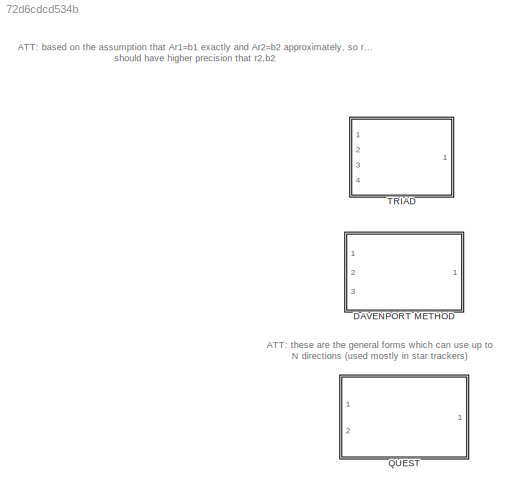
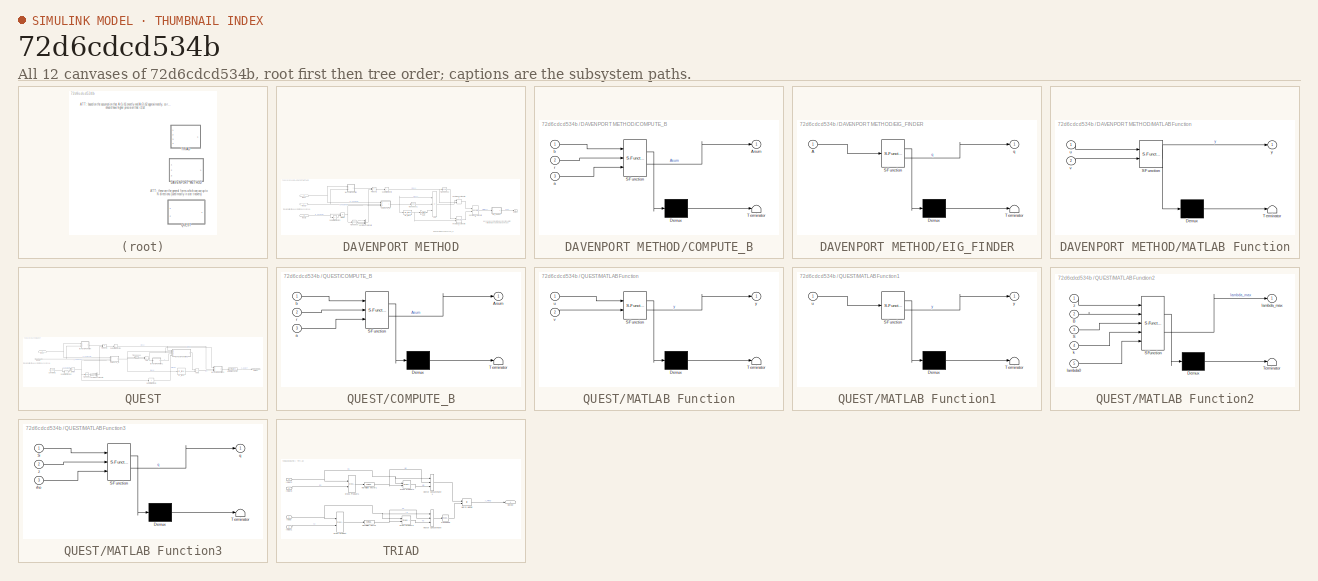
[diagram: thumbnail index - all 12 canvases of the model, root first then tree order]
MODEL slx_72d6cdcd534b
KIND library
CONFIG AbsTol = auto
CONFIG EnableMultiTasking = off
CONFIG FixedStep = auto
CONFIG MaxStep = auto
CONFIG MinStep = auto
CONFIG RelTol = 1e-3
CONFIG SampleTimeConstraint = Unconstrained
CONFIG SolverName = VariableStepAuto
CONFIG StartTime = 0.0
CONFIG StopTime = 10.0
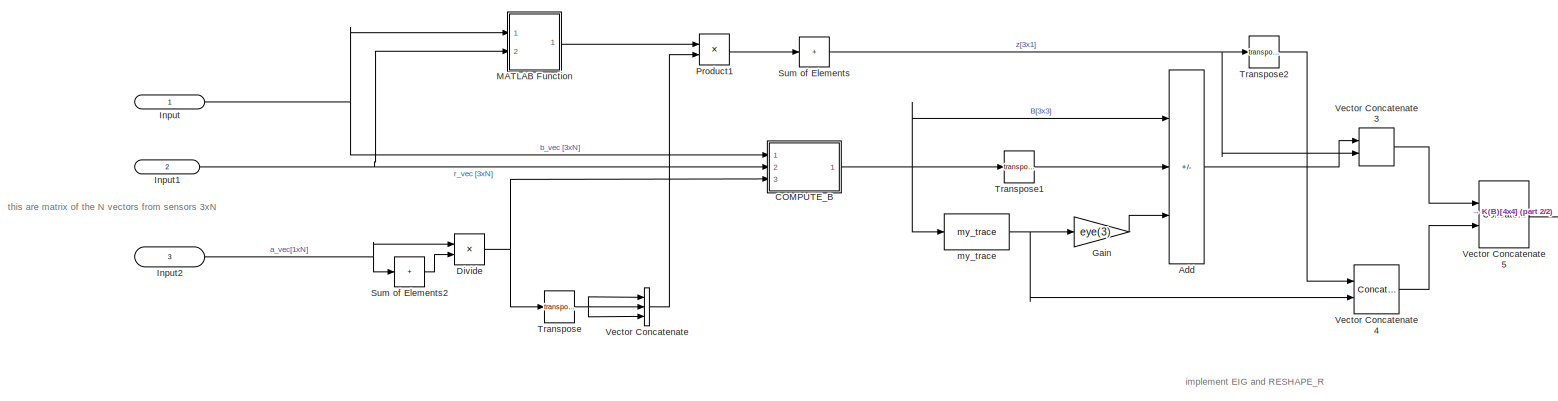
[diagram: DAVENPORT METHOD - part 1/2, most of the canvas]
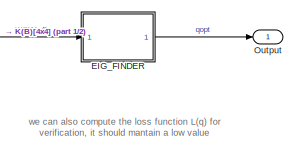
[diagram: DAVENPORT METHOD - part 2/2, middle right region]
BLOCK [SubSystem] DAVENPORT METHOD
  Ports = [3, 1]
  RequestExecContextInheritance = off
BLOCK [Sum] DAVENPORT METHOD/Add
  IconShape = rectangular
  Inputs = ++-
  Ports = [3, 1]
BLOCK [SubSystem] DAVENPORT METHOD/COMPUTE_B
  ErrorFcn = Stateflow.Translate.translate
  PermitHierarchicalResolution = ExplicitOnly
  Ports = [3, 1]
  RequestExecContextInheritance = off
  SFBlockType = MATLAB Function
  TreatAsAtomicUnit = on
BLOCK [Demux] DAVENPORT METHOD/COMPUTE_B/ Demux 
  Outputs = 1
  Ports = [1, 1]
BLOCK [S-Function] DAVENPORT METHOD/COMPUTE_B/ SFunction 
  EnableBusSupport = off
  FunctionName = sf_sfun
  PortCounts = [3 2]
  Ports = [3, 2]
  SFcnIsStateOwnerBlock = off
  SFunctionDeploymentMode = off
  Tag = Stateflow S-Function 2
BLOCK [Terminator] DAVENPORT METHOD/COMPUTE_B/ Terminator 
BLOCK [Outport] DAVENPORT METHOD/COMPUTE_B/Asum
BLOCK [Inport] DAVENPORT METHOD/COMPUTE_B/a
  Port = 3
BLOCK [Inport] DAVENPORT METHOD/COMPUTE_B/b
BLOCK [Inport] DAVENPORT METHOD/COMPUTE_B/r
  Port = 2
BLOCK [Product] DAVENPORT METHOD/Divide
  Inputs = */
  Ports = [2, 1]
BLOCK [SubSystem] DAVENPORT METHOD/EIG_FINDER
  ErrorFcn = Stateflow.Translate.translate
  PermitHierarchicalResolution = ExplicitOnly
  Ports = [1, 1]
  RequestExecContextInheritance = off
  SFBlockType = MATLAB Function
  TreatAsAtomicUnit = on
BLOCK [Demux] DAVENPORT METHOD/EIG_FINDER/ Demux 
  Outputs = 1
  Ports = [1, 1]
BLOCK [S-Function] DAVENPORT METHOD/EIG_FINDER/ SFunction 
  EnableBusSupport = off
  FunctionName = sf_sfun
  PortCounts = [1 2]
  Ports = [1, 2]
  SFcnIsStateOwnerBlock = off
  SFunctionDeploymentMode = off
  Tag = Stateflow S-Function 4
BLOCK [Terminator] DAVENPORT METHOD/EIG_FINDER/ Terminator 
BLOCK [Inport] DAVENPORT METHOD/EIG_FINDER/A
BLOCK [Outport] DAVENPORT METHOD/EIG_FINDER/q
BLOCK [Gain] DAVENPORT METHOD/Gain
  Gain = eye(3)
BLOCK [Inport] DAVENPORT METHOD/Input
  IconDisplay = Signal name
BLOCK [Inport] DAVENPORT METHOD/Input1
  IconDisplay = Signal name
  Port = 2
BLOCK [Inport] DAVENPORT METHOD/Input2
  IconDisplay = Signal name
  Port = 3
BLOCK [SubSystem] DAVENPORT METHOD/MATLAB Function
  ErrorFcn = Stateflow.Translate.translate
  PermitHierarchicalResolution = ExplicitOnly
  Ports = [2, 1]
  RequestExecContextInheritance = off
  SFBlockType = MATLAB Function
  TreatAsAtomicUnit = on
BLOCK [Demux] DAVENPORT METHOD/MATLAB Function/ Demux 
  Outputs = 1
  Ports = [1, 1]
BLOCK [S-Function] DAVENPORT METHOD/MATLAB Function/ SFunction 
  EnableBusSupport = off
  FunctionName = sf_sfun
  PortCounts = [2 2]
  Ports = [2, 2]
  SFcnIsStateOwnerBlock = off
  SFunctionDeploymentMode = off
  Tag = Stateflow S-Function 3
BLOCK [Terminator] DAVENPORT METHOD/MATLAB Function/ Terminator 
BLOCK [Inport] DAVENPORT METHOD/MATLAB Function/u
BLOCK [Inport] DAVENPORT METHOD/MATLAB Function/v
  Port = 2
BLOCK [Outport] DAVENPORT METHOD/MATLAB Function/y
BLOCK [Outport] DAVENPORT METHOD/Output
  IconDisplay = Signal name
BLOCK [Product] DAVENPORT METHOD/Product1
  Ports = [2, 1]
BLOCK [Sum] DAVENPORT METHOD/Sum of Elements
  CollapseDim = 2
  CollapseMode = Specified dimension
  IconShape = rectangular
  Inputs = +
  Ports = [1, 1]
BLOCK [Sum] DAVENPORT METHOD/Sum of Elements2
  IconShape = rectangular
  Inputs = +
  Ports = [1, 1]
BLOCK [Math] DAVENPORT METHOD/Transpose
  Operator = transpose
  Ports = [1, 1]
BLOCK [Math] DAVENPORT METHOD/Transpose1
  Operator = transpose
  Ports = [1, 1]
BLOCK [Math] DAVENPORT METHOD/Transpose2
  Operator = transpose
  Ports = [1, 1]
BLOCK [Concatenate] DAVENPORT METHOD/Vector Concatenate
  Mode = Multidimensional array
  NumInputs = 3
  Ports = [3, 1]
BLOCK [Concatenate] DAVENPORT METHOD/Vector Concatenate3
  ConcatenateDimension = 2
  Mode = Multidimensional array
  Ports = [2, 1]
BLOCK [Concatenate] DAVENPORT METHOD/Vector Concatenate4
  ConcatenateDimension = 2
  Mode = Multidimensional array
  Ports = [2, 1]
BLOCK [Concatenate] DAVENPORT METHOD/Vector Concatenate5
  Mode = Multidimensional array
  Ports = [2, 1]
BLOCK [Reference] DAVENPORT METHOD/my_trace  REF=my_math_ops/my_trace  (lib defined in slx_67cfba16120e)
  Ports = [1, 1]
  SourceBlock = my_math_ops/my_trace
  SourceProductName = My Mathematics Operations
  SourceType = SubSystem
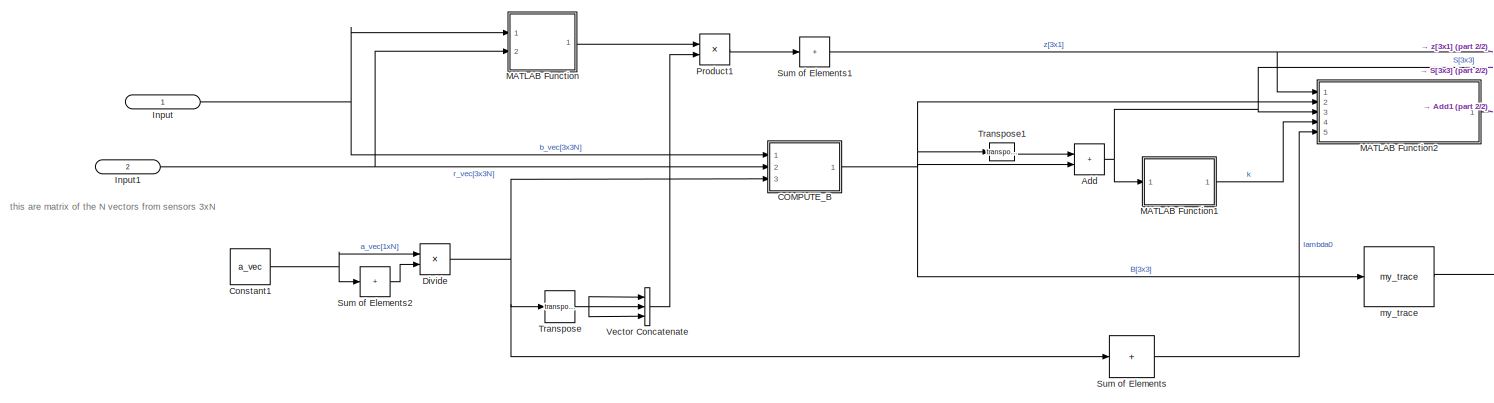
[diagram: QUEST - part 1/2, center side, full height]
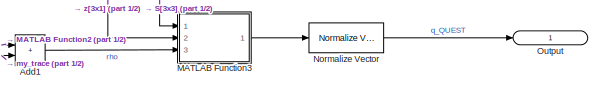
[diagram: QUEST - part 2/2, middle right region]
BLOCK [SubSystem] QUEST
  Ports = [2, 1]
  RequestExecContextInheritance = off
BLOCK [Sum] QUEST/Add
  IconShape = rectangular
  Ports = [2, 1]
BLOCK [Sum] QUEST/Add1
  IconShape = rectangular
  Ports = [2, 1]
BLOCK [SubSystem] QUEST/COMPUTE_B
  ErrorFcn = Stateflow.Translate.translate
  PermitHierarchicalResolution = ExplicitOnly
  Ports = [3, 1]
  RequestExecContextInheritance = off
  SFBlockType = MATLAB Function
  TreatAsAtomicUnit = on
BLOCK [Demux] QUEST/COMPUTE_B/ Demux 
  Outputs = 1
  Ports = [1, 1]
BLOCK [S-Function] QUEST/COMPUTE_B/ SFunction 
  EnableBusSupport = off
  FunctionName = sf_sfun
  PortCounts = [3 2]
  Ports = [3, 2]
  SFcnIsStateOwnerBlock = off
  SFunctionDeploymentMode = off
  Tag = Stateflow S-Function 1
BLOCK [Terminator] QUEST/COMPUTE_B/ Terminator 
BLOCK [Outport] QUEST/COMPUTE_B/Asum
BLOCK [Inport] QUEST/COMPUTE_B/a
  Port = 3
BLOCK [Inport] QUEST/COMPUTE_B/b
BLOCK [Inport] QUEST/COMPUTE_B/r
  Port = 2
BLOCK [Constant] QUEST/Constant1
  Value = a_vec
BLOCK [Product] QUEST/Divide
  Inputs = */
  Ports = [2, 1]
BLOCK [Inport] QUEST/Input
  IconDisplay = Signal name
BLOCK [Inport] QUEST/Input1
  IconDisplay = Signal name
  Port = 2
BLOCK [SubSystem] QUEST/MATLAB Function
  ErrorFcn = Stateflow.Translate.translate
  PermitHierarchicalResolution = ExplicitOnly
  Ports = [2, 1]
  RequestExecContextInheritance = off
  SFBlockType = MATLAB Function
  TreatAsAtomicUnit = on
BLOCK [Demux] QUEST/MATLAB Function/ Demux 
  Outputs = 1
  Ports = [1, 1]
BLOCK [S-Function] QUEST/MATLAB Function/ SFunction 
  EnableBusSupport = off
  FunctionName = sf_sfun
  PortCounts = [2 2]
  Ports = [2, 2]
  SFcnIsStateOwnerBlock = off
  SFunctionDeploymentMode = off
  Tag = Stateflow S-Function 5
BLOCK [Terminator] QUEST/MATLAB Function/ Terminator 
BLOCK [Inport] QUEST/MATLAB Function/u
BLOCK [Inport] QUEST/MATLAB Function/v
  Port = 2
BLOCK [Outport] QUEST/MATLAB Function/y
BLOCK [SubSystem] QUEST/MATLAB Function1
  ErrorFcn = Stateflow.Translate.translate
  PermitHierarchicalResolution = ExplicitOnly
  Ports = [1, 1]
  RequestExecContextInheritance = off
  SFBlockType = MATLAB Function
  TreatAsAtomicUnit = on
BLOCK [Demux] QUEST/MATLAB Function1/ Demux 
  Outputs = 1
  Ports = [1, 1]
BLOCK [S-Function] QUEST/MATLAB Function1/ SFunction 
  EnableBusSupport = off
  FunctionName = sf_sfun
  PortCounts = [1 2]
  Ports = [1, 2]
  SFcnIsStateOwnerBlock = off
  SFunctionDeploymentMode = off
  Tag = Stateflow S-Function 6
BLOCK [Terminator] QUEST/MATLAB Function1/ Terminator 
BLOCK [Inport] QUEST/MATLAB Function1/u
BLOCK [Outport] QUEST/MATLAB Function1/y
BLOCK [SubSystem] QUEST/MATLAB Function2
  ErrorFcn = Stateflow.Translate.translate
  PermitHierarchicalResolution = ExplicitOnly
  Ports = [5, 1]
  RequestExecContextInheritance = off
  SFBlockType = MATLAB Function
  TreatAsAtomicUnit = on
BLOCK [Demux] QUEST/MATLAB Function2/ Demux 
  Outputs = 1
  Ports = [1, 1]
BLOCK [S-Function] QUEST/MATLAB Function2/ SFunction 
  EnableBusSupport = off
  FunctionName = sf_sfun
  PortCounts = [5 2]
  Ports = [5, 2]
  SFcnIsStateOwnerBlock = off
  SFunctionDeploymentMode = off
  Tag = Stateflow S-Function 7
BLOCK [Terminator] QUEST/MATLAB Function2/ Terminator 
BLOCK [Inport] QUEST/MATLAB Function2/B
  Port = 2
BLOCK [Inport] QUEST/MATLAB Function2/S
  Port = 3
BLOCK [Inport] QUEST/MATLAB Function2/k
  Port = 4
BLOCK [Inport] QUEST/MATLAB Function2/lambda0
  Port = 5
BLOCK [Outport] QUEST/MATLAB Function2/lambda_max
BLOCK [Inport] QUEST/MATLAB Function2/z
BLOCK [SubSystem] QUEST/MATLAB Function3
  ErrorFcn = Stateflow.Translate.translate
  PermitHierarchicalResolution = ExplicitOnly
  Ports = [3, 1]
  RequestExecContextInheritance = off
  SFBlockType = MATLAB Function
  TreatAsAtomicUnit = on
BLOCK [Demux] QUEST/MATLAB Function3/ Demux 
  Outputs = 1
  Ports = [1, 1]
BLOCK [S-Function] QUEST/MATLAB Function3/ SFunction 
  EnableBusSupport = off
  FunctionName = sf_sfun
  PortCounts = [3 2]
  Ports = [3, 2]
  SFcnIsStateOwnerBlock = off
  SFunctionDeploymentMode = off
  Tag = Stateflow S-Function 8
BLOCK [Terminator] QUEST/MATLAB Function3/ Terminator 
BLOCK [Inport] QUEST/MATLAB Function3/S
BLOCK [Outport] QUEST/MATLAB Function3/q
BLOCK [Inport] QUEST/MATLAB Function3/rho
  Port = 3
BLOCK [Inport] QUEST/MATLAB Function3/z
  Port = 2
BLOCK [Reference] QUEST/Normalize Vector  REF=vrlib/Utilities/Normalize Vector
  Ports = [1, 1]
  SourceBlock = vrlib/Utilities/Normalize Vector
  SourceProductBaseCode = SL
  SourceType = Normalize Vector
BLOCK [Outport] QUEST/Output
  IconDisplay = Signal name
BLOCK [Product] QUEST/Product1
  Ports = [2, 1]
BLOCK [Sum] QUEST/Sum of Elements
  CollapseMode = Specified dimension
  IconShape = rectangular
  Inputs = +
  Ports = [1, 1]
BLOCK [Sum] QUEST/Sum of Elements1
  CollapseDim = 2
  CollapseMode = Specified dimension
  IconShape = rectangular
  Inputs = +
  Ports = [1, 1]
BLOCK [Sum] QUEST/Sum of Elements2
  IconShape = rectangular
  Inputs = +
  Ports = [1, 1]
BLOCK [Math] QUEST/Transpose
  Operator = transpose
  Ports = [1, 1]
BLOCK [Math] QUEST/Transpose1
  Operator = transpose
  Ports = [1, 1]
BLOCK [Concatenate] QUEST/Vector Concatenate
  Mode = Multidimensional array
  NumInputs = 3
  Ports = [3, 1]
BLOCK [Reference] QUEST/my_trace  REF=my_math_ops/my_trace  (lib defined in slx_67cfba16120e)
  Ports = [1, 1]
  SourceBlock = my_math_ops/my_trace
  SourceProductName = My Mathematics Operations
  SourceType = SubSystem
BLOCK [SubSystem] TRIAD
  Ports = [4, 1]
  RequestExecContextInheritance = off
BLOCK [Reference] TRIAD/Cross Product  REF=matrix_library/Cross Product
  Ports = [2, 1]
  SourceBlock = matrix_library/Cross Product
  SourceProductBaseCode = SL
  SourceType = CrossProduct
BLOCK [Reference] TRIAD/Cross Product1  REF=matrix_library/Cross Product
  Ports = [2, 1]
  SourceBlock = matrix_library/Cross Product
  SourceProductBaseCode = SL
  SourceType = CrossProduct
BLOCK [Reference] TRIAD/Cross Product2  REF=matrix_library/Cross Product
  Ports = [2, 1]
  SourceBlock = matrix_library/Cross Product
  SourceProductBaseCode = SL
  SourceType = CrossProduct
BLOCK [Reference] TRIAD/Cross Product3  REF=matrix_library/Cross Product
  Ports = [2, 1]
  SourceBlock = matrix_library/Cross Product
  SourceProductBaseCode = SL
  SourceType = CrossProduct
BLOCK [Inport] TRIAD/Input
  IconDisplay = Signal name
BLOCK [Inport] TRIAD/Input1
  IconDisplay = Signal name
  Port = 2
BLOCK [Inport] TRIAD/Input2
  IconDisplay = Signal name
  Port = 3
BLOCK [Inport] TRIAD/Input3
  IconDisplay = Signal name
  Port = 4
BLOCK [Product] TRIAD/Matrix Multiply
  Multiplication = Matrix(*)
  Ports = [2, 1]
BLOCK [Reference] TRIAD/Normalize Vector  REF=vrlib/Utilities/Normalize Vector
  Ports = [1, 1]
  SourceBlock = vrlib/Utilities/Normalize Vector
  SourceProductBaseCode = SL
  SourceType = Normalize Vector
BLOCK [Reference] TRIAD/Normalize Vector1  REF=vrlib/Utilities/Normalize Vector
  Ports = [1, 1]
  SourceBlock = vrlib/Utilities/Normalize Vector
  SourceProductBaseCode = SL
  SourceType = Normalize Vector
BLOCK [Outport] TRIAD/Output
  IconDisplay = Signal name
BLOCK [Math] TRIAD/Transpose
  Operator = transpose
  Ports = [1, 1]
BLOCK [Concatenate] TRIAD/Vector Concatenate
  ConcatenateDimension = 2
  Mode = Multidimensional array
  NumInputs = 3
  Ports = [3, 1]
BLOCK [Concatenate] TRIAD/Vector Concatenate1
  ConcatenateDimension = 2
  Mode = Multidimensional array
  NumInputs = 3
  Ports = [3, 1]
ANNOTATION (root): ATT: based on the assumption that Ar1=b1 exactly and Ar2=b2 approximately, so r1,b1 should have higher precision that r2,b2
ANNOTATION (root): ATT: these are the general forms which can use up to N directions (used mostly in star trackers)
ANNOTATION DAVENPORT METHOD: implement EIG and RESHAPE_R
ANNOTATION DAVENPORT METHOD: this are matrix of the N vectors from sensors 3xN
ANNOTATION DAVENPORT METHOD: we can also compute the loss function L(q) for verification, it should mantain a low value
ANNOTATION QUEST: this are matrix of the N vectors from sensors 3xN
LINE DAVENPORT METHOD/Add:1 -> DAVENPORT METHOD/Vector Concatenate3:1
NET DAVENPORT METHOD/COMPUTE_B:1 -> DAVENPORT METHOD/Add:1, DAVENPORT METHOD/Transpose1:1, DAVENPORT METHOD/my_trace:1
NET DAVENPORT METHOD/Divide:1 -> DAVENPORT METHOD/COMPUTE_B:3, DAVENPORT METHOD/Transpose:1
LINE DAVENPORT METHOD/EIG_FINDER:1 -> DAVENPORT METHOD/Output:1
LINE DAVENPORT METHOD/Gain:1 -> DAVENPORT METHOD/Add:3
NET DAVENPORT METHOD/Input1:1 -> DAVENPORT METHOD/COMPUTE_B:2, DAVENPORT METHOD/MATLAB Function:2
NET DAVENPORT METHOD/Input2:1 -> DAVENPORT METHOD/Divide:1, DAVENPORT METHOD/Sum of Elements2:1
NET DAVENPORT METHOD/Input:1 -> DAVENPORT METHOD/COMPUTE_B:1, DAVENPORT METHOD/MATLAB Function:1
LINE DAVENPORT METHOD/MATLAB Function:1 -> DAVENPORT METHOD/Product1:1
LINE DAVENPORT METHOD/Product1:1 -> DAVENPORT METHOD/Sum of Elements:1
LINE DAVENPORT METHOD/Sum of Elements2:1 -> DAVENPORT METHOD/Divide:2
NET DAVENPORT METHOD/Sum of Elements:1 -> DAVENPORT METHOD/Transpose2:1, DAVENPORT METHOD/Vector Concatenate3:2
LINE DAVENPORT METHOD/Transpose1:1 -> DAVENPORT METHOD/Add:2
LINE DAVENPORT METHOD/Transpose2:1 -> DAVENPORT METHOD/Vector Concatenate4:1
NET DAVENPORT METHOD/Transpose:1 -> DAVENPORT METHOD/Vector Concatenate:1, DAVENPORT METHOD/Vector Concatenate:2, DAVENPORT METHOD/Vector Concatenate:3
LINE DAVENPORT METHOD/Vector Concatenate3:1 -> DAVENPORT METHOD/Vector Concatenate5:1
LINE DAVENPORT METHOD/Vector Concatenate4:1 -> DAVENPORT METHOD/Vector Concatenate5:2
LINE DAVENPORT METHOD/Vector Concatenate5:1 -> DAVENPORT METHOD/EIG_FINDER:1
LINE DAVENPORT METHOD/Vector Concatenate:1 -> DAVENPORT METHOD/Product1:2
NET DAVENPORT METHOD/my_trace:1 -> DAVENPORT METHOD/Gain:1, DAVENPORT METHOD/Vector Concatenate4:2
LINE QUEST/Add1:1 -> QUEST/MATLAB Function3:3
NET QUEST/Add:1 -> QUEST/MATLAB Function1:1, QUEST/MATLAB Function2:3, QUEST/MATLAB Function3:1
NET QUEST/COMPUTE_B:1 -> QUEST/Add:2, QUEST/MATLAB Function2:2, QUEST/Transpose1:1, QUEST/my_trace:1
NET QUEST/Constant1:1 -> QUEST/Divide:1, QUEST/Sum of Elements2:1
NET QUEST/Divide:1 -> QUEST/COMPUTE_B:3, QUEST/Sum of Elements:1, QUEST/Transpose:1
NET QUEST/Input1:1 -> QUEST/COMPUTE_B:2, QUEST/MATLAB Function:2
NET QUEST/Input:1 -> QUEST/COMPUTE_B:1, QUEST/MATLAB Function:1
LINE QUEST/MATLAB Function1:1 -> QUEST/MATLAB Function2:4
LINE QUEST/MATLAB Function2:1 -> QUEST/Add1:1
LINE QUEST/MATLAB Function3:1 -> QUEST/Normalize Vector:1
LINE QUEST/MATLAB Function:1 -> QUEST/Product1:1
LINE QUEST/Normalize Vector:1 -> QUEST/Output:1
LINE QUEST/Product1:1 -> QUEST/Sum of Elements1:1
NET QUEST/Sum of Elements1:1 -> QUEST/MATLAB Function2:1, QUEST/MATLAB Function3:2
LINE QUEST/Sum of Elements2:1 -> QUEST/Divide:2
LINE QUEST/Sum of Elements:1 -> QUEST/MATLAB Function2:5
LINE QUEST/Transpose1:1 -> QUEST/Add:1
NET QUEST/Transpose:1 -> QUEST/Vector Concatenate:1, QUEST/Vector Concatenate:2, QUEST/Vector Concatenate:3
LINE QUEST/Vector Concatenate:1 -> QUEST/Product1:2
LINE QUEST/my_trace:1 -> QUEST/Add1:2
LINE TRIAD/Cross Product1:1 -> TRIAD/Normalize Vector1:1
LINE TRIAD/Cross Product2:1 -> TRIAD/Vector Concatenate1:3
LINE TRIAD/Cross Product3:1 -> TRIAD/Vector Concatenate:3
LINE TRIAD/Cross Product:1 -> TRIAD/Normalize Vector:1
LINE TRIAD/Input1:1 -> TRIAD/Cross Product:2
NET TRIAD/Input2:1 -> TRIAD/Cross Product1:1, TRIAD/Cross Product2:1, TRIAD/Vector Concatenate1:1
LINE TRIAD/Input3:1 -> TRIAD/Cross Product1:2
NET TRIAD/Input:1 -> TRIAD/Cross Product3:1, TRIAD/Cross Product:1, TRIAD/Vector Concatenate:1
LINE TRIAD/Matrix Multiply:1 -> TRIAD/Output:1
NET TRIAD/Normalize Vector1:1 -> TRIAD/Cross Product2:2, TRIAD/Vector Concatenate1:2
NET TRIAD/Normalize Vector:1 -> TRIAD/Cross Product3:2, TRIAD/Vector Concatenate:2
LINE TRIAD/Transpose:1 -> TRIAD/Matrix Multiply:2
LINE TRIAD/Vector Concatenate1:1 -> TRIAD/Matrix Multiply:1
LINE TRIAD/Vector Concatenate:1 -> TRIAD/Transpose:1
note: NET lines group one-source signal fan-out (src -> all destinations, sorted); 1:1 wires keep LINE
CHART QUEST/COMPUTE_B states=1 transitions=1
  STATE_LABEL 'eML_blk_kernel()'
  STATE_LABEL "SCRIPT:\nfunction Asum = fcn(b,r,a)\nN = length(a);\nAsum = zeros(3);\nfor i = 1:N\n    Asum = Asum + a(i) * b(:,i)*r(:,i)';\nend"
CHART DAVENPORT METHOD/COMPUTE_B states=1 transitions=1
  STATE_LABEL 'eML_blk_kernel()'
  STATE_LABEL "SCRIPT:\nfunction Asum = fcn(b,r,a)\nN = length(a);\nAsum = zeros(3);\nfor i = 1:N\n    Asum = Asum + a(i) * b(:,i)*r(:,i)';\nend"
CHART DAVENPORT METHOD/MATLAB Function states=1 transitions=1
  STATE_LABEL 'eML_blk_kernel()'
  STATE_LABEL 'SCRIPT:\nfunction y = fcn(u,v)\n\ny = cross(u,v);\n'
CHART DAVENPORT METHOD/EIG_FINDER states=1 transitions=1
  STATE_LABEL 'eML_blk_kernel()'
  STATE_LABEL "SCRIPT:\nfunction q = fcn(A)\n[V,D] = eig(A);\n[d,ind] = sort(diag(D),'ComparisonMethod', 'real');\nV = V(:,ind);\nq = real(V(:,4)/norm(V(:,4)));\n"
CHART QUEST/MATLAB Function states=1 transitions=1
  STATE_LABEL 'eML_blk_kernel()'
  STATE_LABEL 'SCRIPT:\nfunction y = crossN(u,v)\n\ny = cross(u,v);\n'
CHART QUEST/MATLAB Function1 states=1 transitions=1
  STATE_LABEL 'eML_blk_kernel()'
  STATE_LABEL 'SCRIPT:\nfunction y = fcn(u)\n\ny = trace(det(u)*inv(u));\n'
CHART QUEST/MATLAB Function2 states=1 transitions=1
  STATE_LABEL 'eML_blk_kernel()'
  STATE_LABEL "SCRIPT:\nfunction lambda_max = fcn(z,B,S,k,lambda0)\n\nlambda_max = fzero(@(l) ((l^2 - trace(B)^2 + k)*(l^2 - trace(B)^2 - norm(z)^2)) - (l-trace(B))*(z'*S*z + det(S)) - z'*S^2*z,lambda0);\n"
CHART QUEST/MATLAB Function3 states=1 transitions=1
  STATE_LABEL 'eML_blk_kernel()'
  STATE_LABEL 'SCRIPT:\nfunction q = fcn(S,z,rho)\nA = rho*eye(3)-S;\nq = [det(A)*A\\z; det(A)];\n'
CHART  states=0 transitions=0
CHART  states=0 transitions=0
CHART  states=0 transitions=0
CHART  states=0 transitions=0
CHART  states=0 transitions=0
CHART  states=0 transitions=0
CHART  states=0 transitions=0
CHART  states=0 transitions=0
